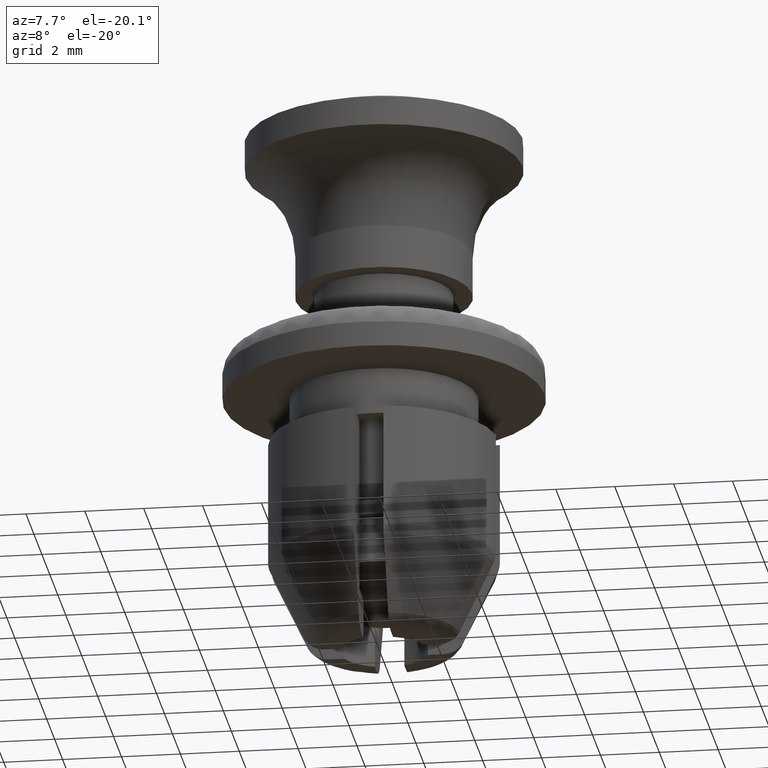
[diagram: clean part render]
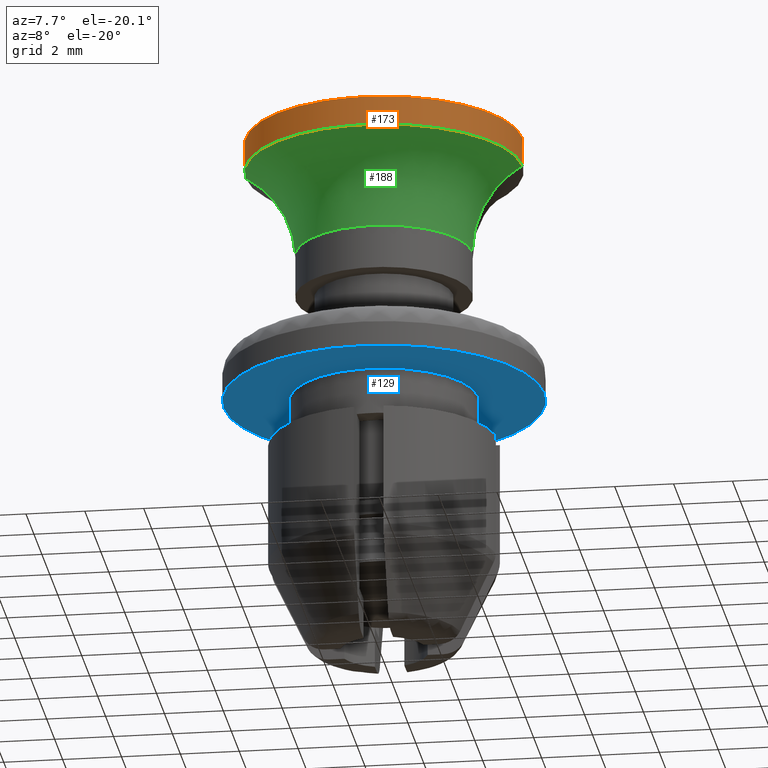
[diagram: same view with three faces highlighted in distinct colors, each labeled with its STEP entity id]
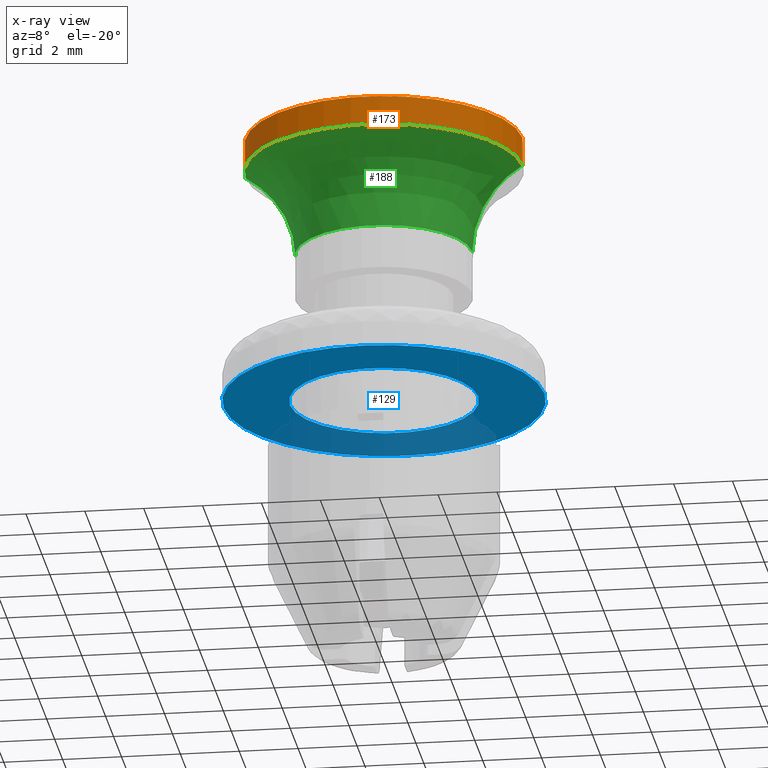
[diagram: x-ray of the same camera — body ghosted, the three highlighted faces saturated]
A machine part, auxiliary view with three faces highlighted in distinct colors.
The next image is the same camera in x-ray (body ghosted, the three faces saturated) — at least one of them is partly hidden behind the body in this view.
Their STEP definitions:

[orange] entity #173 — the highlighted cylindrical surface (partial cylindrical patch) has radius 4.7 mm, axis along (0, 0, 1).
#173=ADVANCED_FACE('',(#808),#807,.T.);
#807=CYLINDRICAL_SURFACE('',#1436,4.70000397788E+00);
#808=FACE_OUTER_BOUND('',#1437,.T.);
#1433=CARTESIAN_POINT('',(0.00000000000E+00,0.00000000000E+00,0.00000000000E+00));
#1434=DIRECTION('',(-0.00000000000E+00,-0.00000000000E+00,1.00000000000E+00));
#1435=DIRECTION('',(1.00000000000E+00,-0.00000000000E+00,-0.00000000000E+00));
#1436=AXIS2_PLACEMENT_3D('',#1433,#1434,#1435);
#1437=EDGE_LOOP('',(#1924,#1925,#1926,#1927));
#1924=ORIENTED_EDGE('',*,*,#2166,.F.);
#1925=ORIENTED_EDGE('',*,*,#2163,.T.);
#1926=ORIENTED_EDGE('',*,*,#2167,.T.);
#1927=ORIENTED_EDGE('',*,*,#2165,.F.);
#2163=EDGE_CURVE('',#3296,#3289,#3297,.T.);
#2165=EDGE_CURVE('',#3303,#3288,#3310,.T.);
#2166=EDGE_CURVE('',#3296,#3303,#3316,.T.);
#2167=EDGE_CURVE('',#3289,#3288,#3322,.T.);
#3288=VERTEX_POINT('',#4217);
#3289=VERTEX_POINT('',#4218);
#3296=VERTEX_POINT('',#4223);
#3297=(BOUNDED_CURVE() B_SPLINE_CURVE(1,(#4224,#4225),.UNSPECIFIED.,.F.,.F.) B_SPLINE_CURVE_WITH_KNOTS((2,2),(8.33332935974E-02,9.16666633252E-01),.UNSPECIFIED.) CURVE() GEOMETRIC_REPRESENTATION_ITEM() RATIONAL_B_SPLINE_CURVE((1.00000000000E+00,1.00000000000E+00)) REPRESENTATION_ITEM('') );
#3303=VERTEX_POINT('',#4226);
#3310=(BOUNDED_CURVE() B_SPLINE_CURVE(1,(#4231,#4232),.UNSPECIFIED.,.F.,.F.) B_SPLINE_CURVE_WITH_KNOTS((2,2),(8.33333333333E-02,9.16666666667E-01),.UNSPECIFIED.) CURVE() GEOMETRIC_REPRESENTATION_ITEM() RATIONAL_B_SPLINE_CURVE((7.50000000000E-01,7.50000000000E-01)) REPRESENTATION_ITEM('') );
#3316=CIRCLE('',#4236,4.70000000000E+00);
#3322=CIRCLE('',#4240,4.70000795576E+00);
#4217=CARTESIAN_POINT('',(-4.70000795576E+00,0.00000000000E+00,5.49999645404E+00));
#4218=CARTESIAN_POINT('',(4.70000795576E+00,2.96059473233E-16,5.49999645404E+00));
#4223=CARTESIAN_POINT('',(4.70000000000E+00,0.00000000000E+00,4.49966620396E+00));
#4224=CARTESIAN_POINT('',(4.70000397788E+00,0.00000000000E+00,4.49966615626E+00));
#4225=CARTESIAN_POINT('',(4.70000397788E+00,0.00000000000E+00,5.49999641393E+00));
#4226=CARTESIAN_POINT('',(-4.70000000000E+00,0.00000000000E+00,4.49966620396E+00));
#4231=CARTESIAN_POINT('',(-4.70000397788E+00,-2.96059473233E-16,4.49966620396E+00));
#4232=CARTESIAN_POINT('',(-4.70000397788E+00,-2.96059473233E-16,5.49999645404E+00));
#4233=CARTESIAN_POINT('',(0.00000000000E+00,0.00000000000E+00,4.49966620396E+00));
#4234=DIRECTION('',(-0.00000000000E+00,0.00000000000E+00,-1.00000000000E+00));
#4235=DIRECTION('',(-1.00000000000E+00,-1.22460635382E-16,0.00000000000E+00));
#4236=AXIS2_PLACEMENT_3D('',#4233,#4234,#4235);
#4237=CARTESIAN_POINT('',(0.00000000000E+00,0.00000000000E+00,5.49999645404E+00));
#4238=DIRECTION('',(-0.00000000000E+00,0.00000000000E+00,-1.00000000000E+00));
#4239=DIRECTION('',(-1.00000000000E+00,-1.22460635382E-16,0.00000000000E+00));
#4240=AXIS2_PLACEMENT_3D('',#4237,#4238,#4239);

[blue] entity #129 — the highlighted planar face has unit normal (0, 0, -1).
#129=ADVANCED_FACE('',(#364,#365),#363,.T.);
#363=PLANE('',#1102);
#364=FACE_OUTER_BOUND('',#1103,.T.);
#365=FACE_BOUND('',#1104,.T.);
#1099=CARTESIAN_POINT('',(1.25350000000E+01,-1.13276122815E+01,-2.00000000000E+00));
#1100=DIRECTION('',(0.00000000000E+00,0.00000000000E+00,-1.00000000000E+00));
#1101=DIRECTION('',(-1.00000000000E+00,0.00000000000E+00,0.00000000000E+00));
#1102=AXIS2_PLACEMENT_3D('',#1099,#1100,#1101);
#1103=EDGE_LOOP('',(#1704,#1705));
#1104=EDGE_LOOP('',(#1706,#1707));
#1704=ORIENTED_EDGE('',*,*,#2081,.T.);
#1705=ORIENTED_EDGE('',*,*,#2082,.T.);
#1706=ORIENTED_EDGE('',*,*,#2083,.F.);
#1707=ORIENTED_EDGE('',*,*,#2084,.F.);
#2081=EDGE_CURVE('',#2761,#2762,#2763,.T.);
#2082=EDGE_CURVE('',#2762,#2761,#2769,.T.);
#2083=EDGE_CURVE('',#2775,#2776,#2777,.T.);
#2084=EDGE_CURVE('',#2776,#2775,#2783,.T.);
#2761=VERTEX_POINT('',#3877);
#2762=VERTEX_POINT('',#3878);
#2763=CIRCLE('',#3882,5.45000000000E+00);
#2769=CIRCLE('',#3886,5.45000000000E+00);
#2775=VERTEX_POINT('',#3887);
#2776=VERTEX_POINT('',#3888);
#2777=CIRCLE('',#3892,3.20000000000E+00);
#2783=CIRCLE('',#3896,3.20000000000E+00);
#3877=CARTESIAN_POINT('',(-5.45000000000E+00,0.00000000000E+00,-2.00000000000E+00));
#3878=CARTESIAN_POINT('',(5.45000000000E+00,2.96059473233E-16,-2.00000000000E+00));
#3879=CARTESIAN_POINT('',(0.00000000000E+00,0.00000000000E+00,-2.00000000000E+00));
#3880=DIRECTION('',(-0.00000000000E+00,0.00000000000E+00,-1.00000000000E+00));
#3881=DIRECTION('',(-1.00000000000E+00,-1.22460635382E-16,0.00000000000E+00));
#3882=AXIS2_PLACEMENT_3D('',#3879,#3880,#3881);
#3883=CARTESIAN_POINT('',(0.00000000000E+00,0.00000000000E+00,-2.00000000000E+00));
#3884=DIRECTION('',(-0.00000000000E+00,0.00000000000E+00,-1.00000000000E+00));
#3885=DIRECTION('',(-1.00000000000E+00,-1.22460635382E-16,0.00000000000E+00));
#3886=AXIS2_PLACEMENT_3D('',#3883,#3884,#3885);
#3887=CARTESIAN_POINT('',(3.20000000000E+00,1.48029736617E-16,-2.00000000000E+00));
#3888=CARTESIAN_POINT('',(-3.20000000000E+00,0.00000000000E+00,-2.00000000000E+00));
#3889=CARTESIAN_POINT('',(0.00000000000E+00,0.00000000000E+00,-2.00000000000E+00));
#3890=DIRECTION('',(-0.00000000000E+00,0.00000000000E+00,-1.00000000000E+00));
#3891=DIRECTION('',(-1.00000000000E+00,-1.22460635382E-16,0.00000000000E+00));
#3892=AXIS2_PLACEMENT_3D('',#3889,#3890,#3891);
#3893=CARTESIAN_POINT('',(0.00000000000E+00,0.00000000000E+00,-2.00000000000E+00));
#3894=DIRECTION('',(-0.00000000000E+00,0.00000000000E+00,-1.00000000000E+00));
#3895=DIRECTION('',(-1.00000000000E+00,-1.22460635382E-16,0.00000000000E+00));
#3896=AXIS2_PLACEMENT_3D('',#3893,#3894,#3895);

[green] entity #188 — the highlighted face is a freeform B-spline surface patch.
#188=ADVANCED_FACE('',(#958),#957,.F.);
#957=( BOUNDED_SURFACE() B_SPLINE_SURFACE( 2,2,((#1544,#1545,#1546,#1547,#1548),(#1549,#1550,#1551,#1552,#1553),(#1554,#1555,#1556,#1557,#1558),(#1559,#1560,#1561,#1562,#1563),(#1564,#1565,#1566,#1567,#1568)), .UNSPECIFIED.,.F.,.F.,.F.) B_SPLINE_SURFACE_WITH_KNOTS((3,2,3),(3,2,3),(0.00000000000E+00,5.00000000000E-01,1.00000000000E+00),(0.00000000000E+00,5.00000000000E-01,1.00000000000E+00), .UNSPECIFIED. ) GEOMETRIC_REPRESENTATION_ITEM() RATIONAL_B_SPLINE_SURFACE(((1.00000000000E+00,7.07106781187E-01,1.00000000000E+00,7.07106781187E-01,1.00000000000E+00),(7.07106781187E-01,5.00000000000E-01,7.07106781187E-01,5.00000000000E-01,7.07106781187E-01),(1.00000000000E+00,7.07106781187E-01,1.00000000000E+00,7.07106781187E-01,1.00000000000E+00),(7.07106781187E-01,5.00000000000E-01,7.07106781187E-01,5.00000000000E-01,7.07106781187E-01),(1.00000000000E+00,7.07106781187E-01,1.00000000000E+00,7.07106781187E-01,1.00000000000E+00))) REPRESENTATION_ITEM('') SURFACE() );
#958=FACE_OUTER_BOUND('',#1569,.T.);
#1544=CARTESIAN_POINT('',(3.00000000000E+00,-3.67381906147E-16,1.49800000000E+00));
#1545=CARTESIAN_POINT('',(3.00000000000E+00,-3.67381906147E-16,4.99800000000E+00));
#1546=CARTESIAN_POINT('',(6.50000000000E+00,-7.95994129985E-16,4.99800000000E+00));
#1547=CARTESIAN_POINT('',(1.00000000000E+01,-1.22460635382E-15,4.99800000000E+00));
#1548=CARTESIAN_POINT('',(1.00000000000E+01,-1.22460635382E-15,1.49800000000E+00));
#1549=CARTESIAN_POINT('',(3.00000000000E+00,-3.00000000000E+00,1.49800000000E+00));
#1550=CARTESIAN_POINT('',(3.00000000000E+00,-3.00000000000E+00,4.99800000000E+00));
#1551=CARTESIAN_POINT('',(6.50000000000E+00,-6.50000000000E+00,4.99800000000E+00));
#1552=CARTESIAN_POINT('',(1.00000000000E+01,-1.00000000000E+01,4.99800000000E+00));
#1553=CARTESIAN_POINT('',(1.00000000000E+01,-1.00000000000E+01,1.49800000000E+00));
#1554=CARTESIAN_POINT('',(-1.83684886275E-16,-3.00000000000E+00,1.49800000000E+00));
#1555=CARTESIAN_POINT('',(-1.83684886275E-16,-3.00000000000E+00,4.99800000000E+00));
#1556=CARTESIAN_POINT('',(-3.97983920262E-16,-6.50000000000E+00,4.99800000000E+00));
#1557=CARTESIAN_POINT('',(-6.12282954249E-16,-1.00000000000E+01,4.99800000000E+00));
#1558=CARTESIAN_POINT('',(-6.12282954249E-16,-1.00000000000E+01,1.49800000000E+00));
#1559=CARTESIAN_POINT('',(-3.00000000000E+00,-3.00000000000E+00,1.49800000000E+00));
#1560=CARTESIAN_POINT('',(-3.00000000000E+00,-3.00000000000E+00,4.99800000000E+00));
#1561=CARTESIAN_POINT('',(-6.50000000000E+00,-6.50000000000E+00,4.99800000000E+00));
#1562=CARTESIAN_POINT('',(-1.00000000000E+01,-1.00000000000E+01,4.99800000000E+00));
#1563=CARTESIAN_POINT('',(-1.00000000000E+01,-1.00000000000E+01,1.49800000000E+00));
#1564=CARTESIAN_POINT('',(-3.00000000000E+00,-1.21335974928E-20,1.49800000000E+00));
#1565=CARTESIAN_POINT('',(-3.00000000000E+00,-1.21335974928E-20,4.99800000000E+00));
#1566=CARTESIAN_POINT('',(-6.50000000000E+00,-2.62894612344E-20,4.99800000000E+00));
#1567=CARTESIAN_POINT('',(-1.00000000000E+01,-4.04453249759E-20,4.99800000000E+00));
#1568=CARTESIAN_POINT('',(-1.00000000000E+01,-4.04453249760E-20,1.49800000000E+00));
#1569=EDGE_LOOP('',(#1982,#1983,#1984,#1985));
#1982=ORIENTED_EDGE('',*,*,#2189,.F.);
#1983=ORIENTED_EDGE('',*,*,#2190,.T.);
#1984=ORIENTED_EDGE('',*,*,#2166,.T.);
#1985=ORIENTED_EDGE('',*,*,#2191,.F.);
#2166=EDGE_CURVE('',#3296,#3303,#3316,.T.);
#2189=EDGE_CURVE('',#3444,#3443,#3463,.T.);
#2190=EDGE_CURVE('',#3444,#3296,#3469,.T.);
#2191=EDGE_CURVE('',#3443,#3303,#3475,.T.);
#3296=VERTEX_POINT('',#4223);
#3303=VERTEX_POINT('',#4226);
#3316=CIRCLE('',#4236,4.70000000000E+00);
#3443=VERTEX_POINT('',#4298);
#3444=VERTEX_POINT('',#4299);
#3463=CIRCLE('',#4311,3.00000000000E+00);
#3469=(BOUNDED_CURVE() B_SPLINE_CURVE(2,(#4312,#4313,#4314),.UNSPECIFIED.,.F.,.F.) B_SPLINE_CURVE_WITH_KNOTS((3,3),(0.00000000000E+00,3.24375852943E-01),.UNSPECIFIED.) CURVE() GEOMETRIC_REPRESENTATION_ITEM() RATIONAL_B_SPLINE_CURVE((1.00000000000E+00,8.09985024652E-01,8.66515128106E-01)) REPRESENTATION_ITEM('') );
#3475=(BOUNDED_CURVE() B_SPLINE_CURVE(2,(#4315,#4316,#4317),.UNSPECIFIED.,.F.,.F.) B_SPLINE_CURVE_WITH_KNOTS((3,3),(0.00000000000E+00,3.24375811853E-01),.UNSPECIFIED.) CURVE() GEOMETRIC_REPRESENTATION_ITEM() RATIONAL_B_SPLINE_CURVE((7.50000000000E-01,6.07488786542E-01,6.49886335338E-01)) REPRESENTATION_ITEM('') );
#4223=CARTESIAN_POINT('',(4.70000000000E+00,0.00000000000E+00,4.49966620396E+00));
#4226=CARTESIAN_POINT('',(-4.70000000000E+00,0.00000000000E+00,4.49966620396E+00));
#4233=CARTESIAN_POINT('',(0.00000000000E+00,0.00000000000E+00,4.49966620396E+00));
#4234=DIRECTION('',(-0.00000000000E+00,0.00000000000E+00,-1.00000000000E+00));
#4235=DIRECTION('',(-1.00000000000E+00,-1.22460635382E-16,0.00000000000E+00));
#4236=AXIS2_PLACEMENT_3D('',#4233,#4234,#4235);
#4298=CARTESIAN_POINT('',(-3.00000000000E+00,0.00000000000E+00,1.49800000000E+00));
#4299=CARTESIAN_POINT('',(3.00000000000E+00,-1.48029736617E-16,1.49800000000E+00));
#4308=CARTESIAN_POINT('',(0.00000000000E+00,0.00000000000E+00,1.49800000000E+00));
#4309=DIRECTION('',(-0.00000000000E+00,0.00000000000E+00,-1.00000000000E+00));
#4310=DIRECTION('',(-1.00000000000E+00,-1.22460635382E-16,0.00000000000E+00));
#4311=AXIS2_PLACEMENT_3D('',#4308,#4309,#4310);
#4312=CARTESIAN_POINT('',(3.00000000000E+00,-3.67381906147E-16,1.49800000000E+00));
#4313=CARTESIAN_POINT('',(3.00000000000E+00,-3.67381906147E-16,3.48023239692E+00));
#4314=CARTESIAN_POINT('',(4.69999999750E+00,-5.75564985990E-16,4.49966620246E+00));
#4315=CARTESIAN_POINT('',(-3.00000000000E+00,4.44089209850E-16,1.49800000000E+00));
#4316=CARTESIAN_POINT('',(-3.00000000000E+00,5.48268403905E-16,3.48023208692E+00));
#4317=CARTESIAN_POINT('',(-4.69999959491E+00,7.28200668964E-16,4.49966596104E+00));